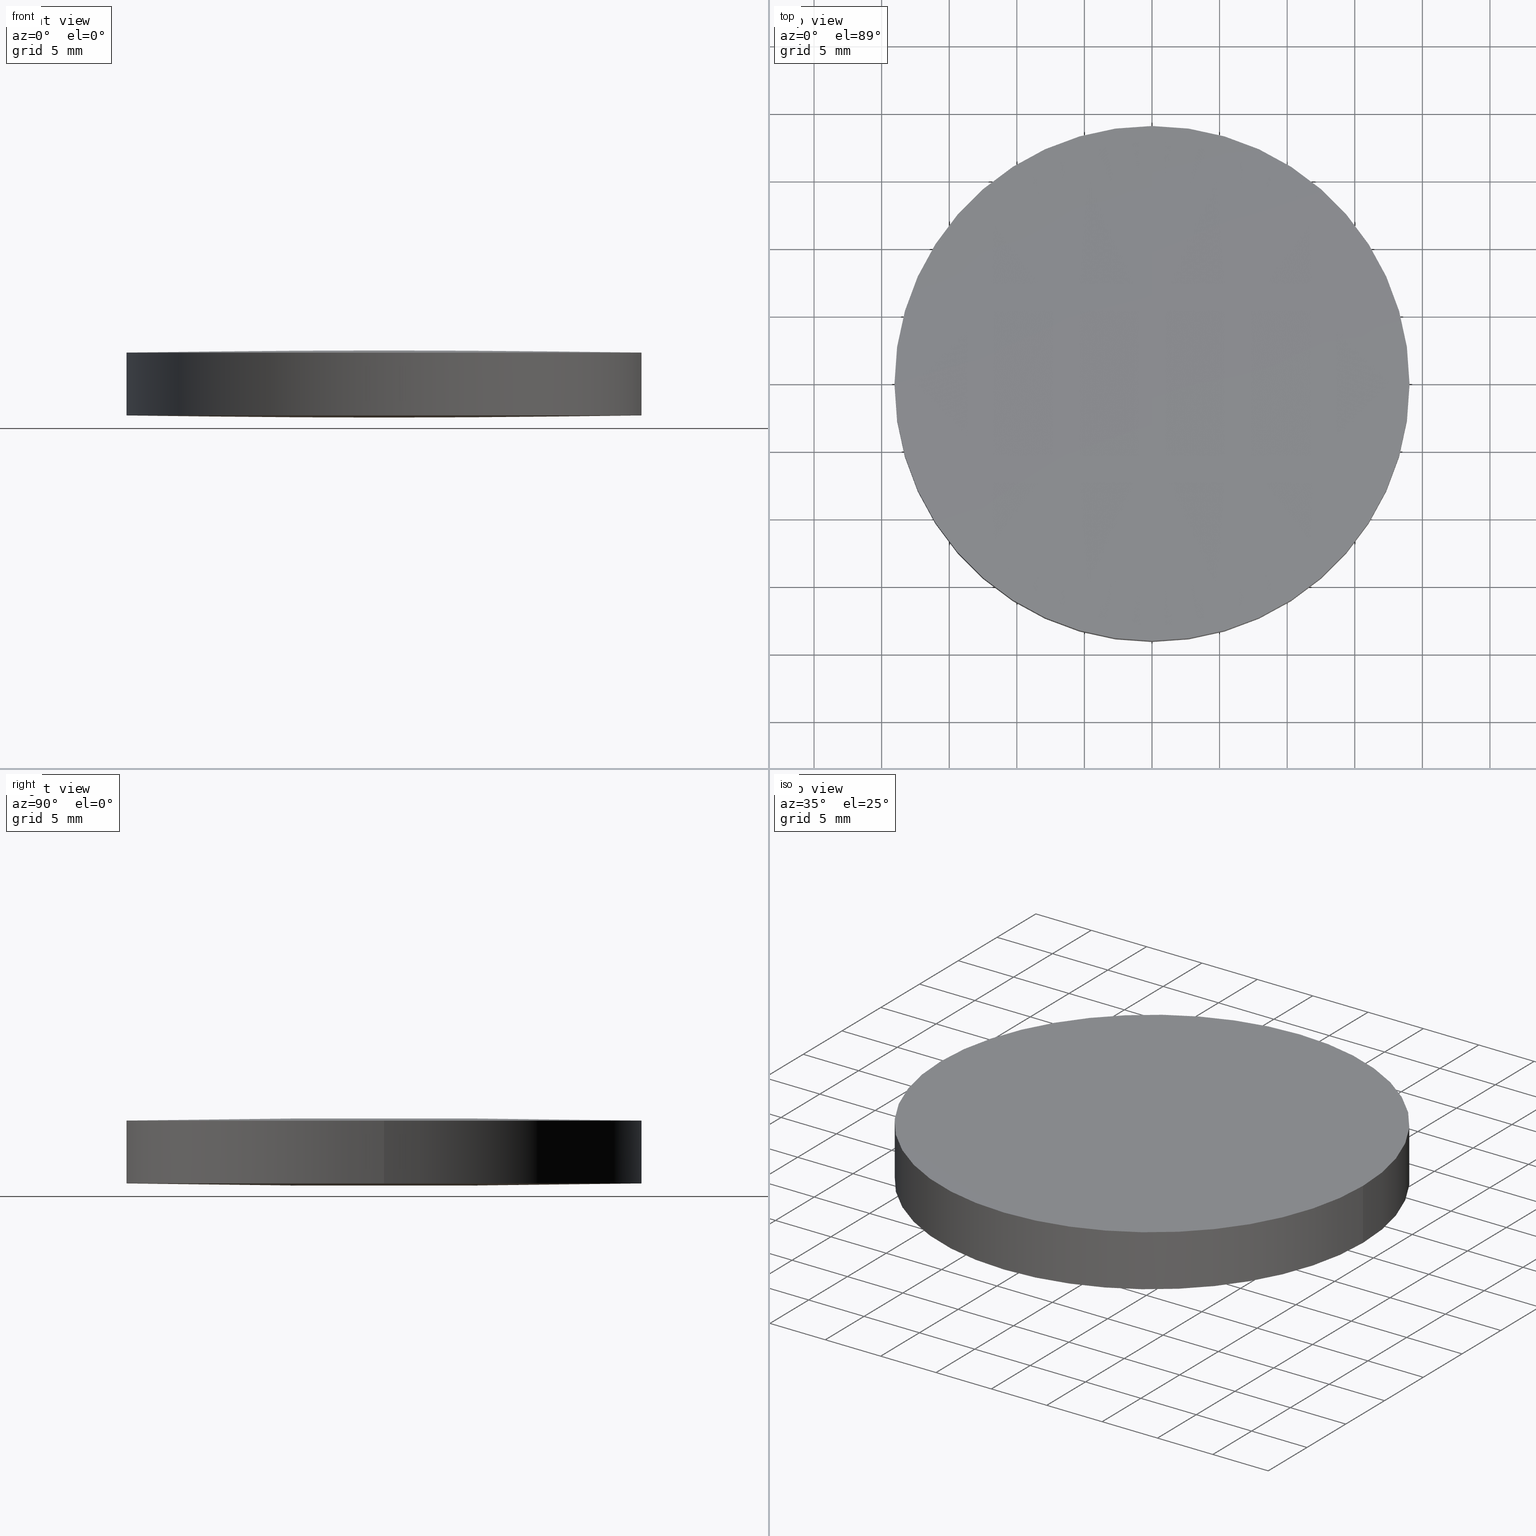
[diagram: canonical four-view strip — front | top / right | iso, engineering-drawing reading convention]
A machine part, canonical four-view strip (front | top / right | iso — engineering-drawing reading convention). The complete STEP part file that produces these views, byte-faithful:
ISO-10303-21;
HEADER;
FILE_DESCRIPTION (( 'STEP AP203' ),
    '1' );
FILE_NAME ('111-0450E BK7 bi-cx 38.1 F1000.STEP',
    '2019-01-10T14:14:38',
    ( '' ),
    ( '' ),
    'SwSTEP 2.0',
    'SolidWorks 2017',
    '' );
FILE_SCHEMA (( 'CONFIG_CONTROL_DESIGN' ));
ENDSEC;

DATA;
#1 = VERTEX_POINT ( 'NONE', #48 ) ;
#2 = DIRECTION ( 'NONE',  ( 1.456985596620939900E-018, 6.792982492034799900E-035, 1.000000000000000000 ) ) ;
#3 = DIRECTION ( 'NONE',  ( -1.456985596620939900E-018, -6.792982492034799900E-035, -1.000000000000000000 ) ) ;
#4 = DIRECTION ( 'NONE',  ( 1.000000000000000000, 0.0000000000000000000, 0.0000000000000000000 ) ) ;
#5 = DIRECTION ( 'NONE',  ( -1.456985596620939900E-018, -6.792982492034799900E-035, -1.000000000000000000 ) ) ;
#6 = CARTESIAN_POINT ( 'NONE',  ( 19.16539115749171500, -6.426931750395551600, 4.882637590654588200 ) ) ;
#7 = UNCERTAINTY_MEASURE_WITH_UNIT (LENGTH_MEASURE( 1.000000000000000100E-005 ), #25, 'distance_accuracy_value', 'NONE');
#8 = VERTEX_POINT ( 'NONE', #273 ) ;
#9 = CARTESIAN_POINT ( 'NONE',  ( 6.388918343689373300, -6.426931750395552500, 5.059745798270014900 ) ) ;
#10 = APPROVAL_DATE_TIME ( #67, #257 ) ;
#11 = AXIS2_PLACEMENT_3D ( 'NONE', #174, #5, #237 ) ;
#12 = ADVANCED_FACE ( 'NONE', ( #89 ), #240, .T. ) ;
#13 = CIRCLE ( 'NONE', #24, 19.05000000000000100 ) ;
#14 = DATE_AND_TIME ( #177, #116 ) ;
#15 = CARTESIAN_POINT ( 'NONE',  ( 12.77756390800498600, 6.426931750395608500, -0.0007080486260923637900 ) ) ;
#16 = ADVANCED_FACE ( 'NONE', ( #249 ), #286, .T. ) ;
#17 = EDGE_CURVE ( 'NONE', #1, #8, #124, .T. ) ;
#18 = CARTESIAN_POINT ( 'NONE',  ( 19.16097500826495200, 19.27857381669848300, 4.643715858214436700 ) ) ;
#19 = CARTESIAN_POINT ( 'NONE',  ( -19.05000000000000400, 1.444773732675583000E-015, 0.1749918621754240300 ) ) ;
#20 =( BOUNDED_SURFACE ( )  B_SPLINE_SURFACE ( 3, 3, ( 
 ( #32, #215, #217, #263 ),
 ( #6, #90, #9, #178 ),
 ( #219, #181, #96, #71 ),
 ( #18, #247, #162, #120 ) ),
 .UNSPECIFIED., .F., .F., .F. ) 
 B_SPLINE_SURFACE_WITH_KNOTS ( ( 4, 4 ),
 ( 4, 4 ),
 ( 0.0000000000000000000, 1.000000000000000000 ),
 ( 0.0000000000000000000, 1.000000000000000000 ),
 .UNSPECIFIED. ) 
 GEOMETRIC_REPRESENTATION_ITEM ( )  RATIONAL_B_SPLINE_SURFACE ( (
 ( 1.000000000000000000, 0.9999715361965574300, 0.9999715361965574300, 1.000000000000000000),
 ( 0.9998847851211856200, 0.9998563245971967600, 0.9998563245971967600, 0.9998847851211856200),
 ( 0.9998847851211856200, 0.9998563245971967600, 0.9998563245971967600, 0.9998847851211856200),
 ( 1.000000000000000000, 0.9999715361965574300, 0.9999715361965574300, 1.000000000000000000) ) ) 
 REPRESENTATION_ITEM ( '' )  SURFACE ( )  );
#21 = AXIS2_PLACEMENT_3D ( 'NONE', #144, #28, #4 ) ;
#22 = DIRECTION ( 'NONE',  ( 1.000000000000000000, 0.0000000000000000000, 0.0000000000000000000 ) ) ;
#23 = DIRECTION ( 'NONE',  ( 1.000000000000000000, 0.0000000000000000000, -1.422837496700137100E-018 ) ) ;
#24 = AXIS2_PLACEMENT_3D ( 'NONE', #86, #3, #29 ) ;
#25 =( LENGTH_UNIT ( ) NAMED_UNIT ( * ) SI_UNIT ( .MILLI., .METRE. ) );
#26 = CIRCLE ( 'NONE', #42, 19.05000000000000100 ) ;
#27 = CALENDAR_DATE ( 2019, 10, 1 ) ;
#28 = DIRECTION ( 'NONE',  ( 0.0000000000000000000, 0.0000000000000000000, 1.000000000000000000 ) ) ;
#29 = DIRECTION ( 'NONE',  ( 1.000000000000000000, 0.0000000000000000000, 0.0000000000000000000 ) ) ;
#30 = PERSON_AND_ORGANIZATION_ROLE ( 'creator' ) ;
#31 = APPLICATION_CONTEXT ( 'configuration controlled 3d designs of mechanical parts and assemblies' ) ;
#32 = CARTESIAN_POINT ( 'NONE',  ( 19.16097500826495200, -19.27857381669841500, 4.643715858214436700 ) ) ;
#33 = AXIS2_PLACEMENT_3D ( 'NONE', #147, #84, #80 ) ;
#34 = DIRECTION ( 'NONE',  ( -1.456985596620939900E-018, -6.792982492034799900E-035, -1.000000000000000000 ) ) ;
#35 =( GEOMETRIC_REPRESENTATION_CONTEXT ( 3 ) GLOBAL_UNCERTAINTY_ASSIGNED_CONTEXT ( ( #7 ) ) GLOBAL_UNIT_ASSIGNED_CONTEXT ( ( #25, #74, #188 ) ) REPRESENTATION_CONTEXT ( 'NONE', 'WORKASPACE' ) );
#36 = VERTEX_POINT ( 'NONE', #189 ) ;
#37 = CIRCLE ( 'NONE', #134, 1037.000000000000000 ) ;
#38 = EDGE_CURVE ( 'NONE', #202, #110, #13, .T. ) ;
#39 = APPROVAL_PERSON_ORGANIZATION ( #128, #242, #149 ) ;
#40 = APPROVAL_DATE_TIME ( #158, #220 ) ;
#41 = EDGE_LOOP ( 'NONE', ( #205, #262, #145 ) ) ;
#42 = AXIS2_PLACEMENT_3D ( 'NONE', #194, #34, #154 ) ;
#43 = CARTESIAN_POINT ( 'NONE',  ( 3.410605131648479900E-013, -19.27857381669843300, 0.1792167439957914600 ) ) ;
#44 = CARTESIAN_POINT ( 'NONE',  ( 19.16539115749159800, -6.426931750395569400, 0.1173624093452770700 ) ) ;
#45 =( BOUNDED_SURFACE ( )  B_SPLINE_SURFACE ( 3, 3, ( 
 ( #53, #186, #232, #102 ),
 ( #294, #127, #104, #143 ),
 ( #130, #129, #56, #50 ),
 ( #252, #275, #207, #272 ) ),
 .UNSPECIFIED., .F., .F., .F. ) 
 B_SPLINE_SURFACE_WITH_KNOTS ( ( 4, 4 ),
 ( 4, 4 ),
 ( 0.0000000000000000000, 1.000000000000000000 ),
 ( 0.0000000000000000000, 1.000000000000000000 ),
 .UNSPECIFIED. ) 
 GEOMETRIC_REPRESENTATION_ITEM ( )  RATIONAL_B_SPLINE_SURFACE ( (
 ( 1.000000000000000000, 0.9999715361965574300, 0.9999715361965574300, 1.000000000000000000),
 ( 0.9998847851211856200, 0.9998563245971967600, 0.9998563245971967600, 0.9998847851211856200),
 ( 0.9998847851211856200, 0.9998563245971967600, 0.9998563245971967600, 0.9998847851211856200),
 ( 1.000000000000000000, 0.9999715361965574300, 0.9999715361965574300, 1.000000000000000000) ) ) 
 REPRESENTATION_ITEM ( '' )  SURFACE ( )  );
#46 = DIRECTION ( 'NONE',  ( -1.000000000000000000, 0.0000000000000000000, 0.0000000000000000000 ) ) ;
#47 = CARTESIAN_POINT ( 'NONE',  ( -4.656161696687986400E-015, -8.881784197001250400E-016, 4.825008137824579700 ) ) ;
#48 = CARTESIAN_POINT ( 'NONE',  ( -19.05000000000000400, 1.444773732675583000E-015, 0.1749918621754240600 ) ) ;
#49 = ORIENTED_EDGE ( 'NONE', *, *, #266, .T. ) ;
#50 = CARTESIAN_POINT ( 'NONE',  ( 8.673617379884035500E-014, 6.426931750395607600, -0.05974579827012176100 ) ) ;
#51 = DIRECTION ( 'NONE',  ( -1.456985596620939900E-018, -6.792982492034799900E-035, -1.000000000000000000 ) ) ;
#52 = DATE_AND_TIME ( #197, #231 ) ;
#53 = CARTESIAN_POINT ( 'NONE',  ( -19.16097500826495200, -19.27857381669843300, 0.3562841417854567500 ) ) ;
#54 = CARTESIAN_POINT ( 'NONE',  ( -3.410605131648479900E-013, -19.04999999999755300, 4.825008137824537100 ) ) ;
#55 = EDGE_CURVE ( 'NONE', #68, #202, #26, .T. ) ;
#56 = CARTESIAN_POINT ( 'NONE',  ( -6.388918343689373300, 6.426931750395608500, -0.05974579827012020000 ) ) ;
#57 = CARTESIAN_POINT ( 'NONE',  ( -12.77756390800498400, -6.426931750395552500, 5.000708048625989800 ) ) ;
#58 = SECURITY_CLASSIFICATION_LEVEL ( 'unclassified' ) ;
#59 = ORGANIZATION ( 'UNSPECIFIED', 'UNSPECIFIED', '' ) ;
#60 = CARTESIAN_POINT ( 'NONE',  ( -3.410605131648479400E-013, -6.426931750395551600, 5.059745798270032700 ) ) ;
#61 = SECURITY_CLASSIFICATION ( '', '', #58 ) ;
#62 = FACE_OUTER_BOUND ( 'NONE', #41, .T. ) ;
#63 = COORDINATED_UNIVERSAL_TIME_OFFSET ( 2, 0, .AHEAD. ) ;
#64 = ADVANCED_BREP_SHAPE_REPRESENTATION ( '111-0450E BK7 bi-cx 38.1 F1000', ( #288, #21 ), #35 ) ;
#65 = ORIENTED_EDGE ( 'NONE', *, *, #266, .F. ) ;
#66 = FACE_OUTER_BOUND ( 'NONE', #206, .T. ) ;
#67 = DATE_AND_TIME ( #27, #142 ) ;
#68 = VERTEX_POINT ( 'NONE', #54 ) ;
#69 = PRODUCT_DEFINITION ( 'UNKNOWN', '', #88, #223 ) ;
#70 = CARTESIAN_POINT ( 'NONE',  ( 6.387446189191361900, -19.27857381669842600, 0.1792167439957914300 ) ) ;
#71 = CARTESIAN_POINT ( 'NONE',  ( -8.673617379884035500E-014, 6.426931750395621800, 5.059745798270014900 ) ) ;
#72 = APPROVAL_DATE_TIME ( #218, #242 ) ;
#73 = ORIENTED_EDGE ( 'NONE', *, *, #38, .F. ) ;
#74 =( NAMED_UNIT ( * ) PLANE_ANGLE_UNIT ( ) SI_UNIT ( $, .RADIAN. ) );
#75 = DIRECTION ( 'NONE',  ( 1.000000000000000000, 0.0000000000000000000, 0.0000000000000000000 ) ) ;
#76 = DIRECTION ( 'NONE',  ( 1.000000000000000000, 0.0000000000000000000, -1.422837496700137100E-018 ) ) ;
#77 = DIRECTION ( 'NONE',  ( 0.0000000000000000000, -1.000000000000000000, -8.564883507233608400E-016 ) ) ;
#78 = DIRECTION ( 'NONE',  ( -1.456985596620939900E-018, -6.792982492034799900E-035, -1.000000000000000000 ) ) ;
#79 = FACE_OUTER_BOUND ( 'NONE', #248, .T. ) ;
#80 = DIRECTION ( 'NONE',  ( 1.000000000000000000, -8.881784197001252300E-016, -1.422837496700137100E-018 ) ) ;
#81 = CARTESIAN_POINT ( 'NONE',  ( -12.77461966186314300, 19.27857381669847600, 4.761759110022530300 ) ) ;
#82 = ORIENTED_EDGE ( 'NONE', *, *, #55, .F. ) ;
#83 = DATE_TIME_ROLE ( 'classification_date' ) ;
#84 = DIRECTION ( 'NONE',  ( -1.456985596620939900E-018, -6.792982492034799900E-035, -1.000000000000000000 ) ) ;
#85 = AXIS2_PLACEMENT_3D ( 'NONE', #198, #46, #290 ) ;
#86 = CARTESIAN_POINT ( 'NONE',  ( -4.656161696687986400E-015, -8.881784197001250400E-016, 4.825008137824579700 ) ) ;
#87 = DATE_TIME_ROLE ( 'creation_date' ) ;
#88 = PRODUCT_DEFINITION_FORMATION_WITH_SPECIFIED_SOURCE ( 'ANY', '', #259, .NOT_KNOWN. ) ;
#89 = FACE_OUTER_BOUND ( 'NONE', #156, .T. ) ;
#90 = CARTESIAN_POINT ( 'NONE',  ( 12.77756390800491600, -6.426931750395552500, 5.000708048625968500 ) ) ;
#91 = CC_DESIGN_PERSON_AND_ORGANIZATION_ASSIGNMENT ( #92, #155, ( #69 ) ) ;
#92 = PERSON_AND_ORGANIZATION ( #196, #59 ) ;
#93 = VERTEX_POINT ( 'NONE', #235 ) ;
#94 = ORIENTED_EDGE ( 'NONE', *, *, #271, .T. ) ;
#95 = AXIS2_PLACEMENT_3D ( 'NONE', #208, #167, #293 ) ;
#96 = CARTESIAN_POINT ( 'NONE',  ( 6.388918343689373300, 6.426931750395622700, 5.059745798270014000 ) ) ;
#97 = CARTESIAN_POINT ( 'NONE',  ( 19.16097500826483800, 19.27857381669846900, 0.3562841417854290000 ) ) ;
#98 = ORIENTED_EDGE ( 'NONE', *, *, #285, .T. ) ;
#99 = CARTESIAN_POINT ( 'NONE',  ( 12.77461966186314500, -19.27857381669842600, 0.2382408899773642300 ) ) ;
#100 = DIRECTION ( 'NONE',  ( -1.456985596620939900E-018, -6.792982492034799900E-035, -1.000000000000000000 ) ) ;
#101 = AXIS2_PLACEMENT_3D ( 'NONE', #269, #210, #75 ) ;
#102 = CARTESIAN_POINT ( 'NONE',  ( 8.673617379884035500E-014, -19.27857381669843300, 0.1792167439958062500 ) ) ;
#103 = CC_DESIGN_APPROVAL ( #220, ( #61 ) ) ;
#104 = CARTESIAN_POINT ( 'NONE',  ( -6.388918343689373300, -6.426931750395570300, -0.05974579827012255900 ) ) ;
#105 = CARTESIAN_POINT ( 'NONE',  ( -3.410605131648479400E-013, 6.426931750395621800, 5.059745798270030000 ) ) ;
#106 = LINE ( 'NONE', #170, #135 ) ;
#107 = PERSON_AND_ORGANIZATION_ROLE ( 'classification_officer' ) ;
#108 = LOCAL_TIME ( 16, 14, 38.00000000000000000, #274 ) ;
#109 = APPLICATION_CONTEXT ( 'configuration controlled 3d designs of mechanical parts and assemblies' ) ;
#110 = VERTEX_POINT ( 'NONE', #216 ) ;
#111 = CARTESIAN_POINT ( 'NONE',  ( -6.388918343689621100, -6.426931750395552500, 5.059745798270032700 ) ) ;
#112 = APPLICATION_PROTOCOL_DEFINITION ( 'international standard', 'config_control_design', 1994, #109 ) ;
#113 = PERSON_AND_ORGANIZATION ( #196, #59 ) ;
#114 = ORIENTED_EDGE ( 'NONE', *, *, #292, .F. ) ;
#115 = CC_DESIGN_PERSON_AND_ORGANIZATION_ASSIGNMENT ( #225, #276, ( #259 ) ) ;
#116 = LOCAL_TIME ( 16, 14, 38.00000000000000000, #236 ) ;
#117 = ORIENTED_EDGE ( 'NONE', *, *, #292, .T. ) ;
#118 = CIRCLE ( 'NONE', #85, 1037.000000000000000 ) ;
#119 = CC_DESIGN_APPROVAL ( #257, ( #88 ) ) ;
#120 = CARTESIAN_POINT ( 'NONE',  ( -8.673617379884035500E-014, 19.27857381669848300, 4.820783256004086900 ) ) ;
#121 = CARTESIAN_POINT ( 'NONE',  ( 3.410605131648479400E-013, -6.426931750395569400, -0.05974579827013896900 ) ) ;
#122 = SHAPE_DEFINITION_REPRESENTATION ( #250, #64 ) ;
#123 = ADVANCED_FACE ( 'NONE', ( #66 ), #161, .T. ) ;
#124 = CIRCLE ( 'NONE', #260, 19.05000000000000100 ) ;
#125 = CC_DESIGN_APPROVAL ( #242, ( #69 ) ) ;
#126 = ORIENTED_EDGE ( 'NONE', *, *, #160, .F. ) ;
#127 = CARTESIAN_POINT ( 'NONE',  ( -12.77756390800491600, -6.426931750395570300, -0.0007080486260752468400 ) ) ;
#128 = PERSON_AND_ORGANIZATION ( #196, #59 ) ;
#129 = CARTESIAN_POINT ( 'NONE',  ( -12.77756390800491600, 6.426931750395608500, -0.0007080486260728887000 ) ) ;
#130 = CARTESIAN_POINT ( 'NONE',  ( -19.16539115749171500, 6.426931750395607600, 0.1173624093453072000 ) ) ;
#131 = APPROVAL_ROLE ( '' ) ;
#132 = PERSON_AND_ORGANIZATION ( #196, #59 ) ;
#133 = CC_DESIGN_DATE_AND_TIME_ASSIGNMENT ( #52, #87, ( #69 ) ) ;
#134 = AXIS2_PLACEMENT_3D ( 'NONE', #251, #295, #77 ) ;
#135 = VECTOR ( 'NONE', #234, 1000.000000000000000 ) ;
#136 = APPROVAL_STATUS ( 'not_yet_approved' ) ;
#137 = CC_DESIGN_PERSON_AND_ORGANIZATION_ASSIGNMENT ( #113, #30, ( #88 ) ) ;
#138 = ORIENTED_EDGE ( 'NONE', *, *, #281, .T. ) ;
#139 = COORDINATED_UNIVERSAL_TIME_OFFSET ( 2, 0, .AHEAD. ) ;
#140 = CC_DESIGN_DATE_AND_TIME_ASSIGNMENT ( #14, #83, ( #61 ) ) ;
#141 = CARTESIAN_POINT ( 'NONE',  ( 6.388918343689618400, -6.426931750395570300, -0.05974579827013898300 ) ) ;
#142 = LOCAL_TIME ( 16, 14, 38.00000000000000000, #139 ) ;
#143 = CARTESIAN_POINT ( 'NONE',  ( 8.673617379884035500E-014, -6.426931750395569400, -0.05974579827012412000 ) ) ;
#144 = CARTESIAN_POINT ( 'NONE',  ( 0.0000000000000000000, 0.0000000000000000000, 0.0000000000000000000 ) ) ;
#145 = ORIENTED_EDGE ( 'NONE', *, *, #284, .F. ) ;
#146 = CIRCLE ( 'NONE', #11, 19.05000000000000100 ) ;
#147 = CARTESIAN_POINT ( 'NONE',  ( -4.662936703425659800E-015, -8.881784197001250400E-016, 0.1749918621754240300 ) ) ;
#148 = CALENDAR_DATE ( 2019, 10, 1 ) ;
#149 = APPROVAL_ROLE ( '' ) ;
#150 = CARTESIAN_POINT ( 'NONE',  ( -12.77461966186314300, -19.27857381669840800, 4.761759110022530300 ) ) ;
#151 = EDGE_CURVE ( 'NONE', #169, #1, #146, .T. ) ;
#152 = ORIENTED_EDGE ( 'NONE', *, *, #284, .T. ) ;
#153 = APPLICATION_PROTOCOL_DEFINITION ( 'international standard', 'config_control_design', 1994, #31 ) ;
#154 = DIRECTION ( 'NONE',  ( 1.000000000000000000, 0.0000000000000000000, 0.0000000000000000000 ) ) ;
#155 = PERSON_AND_ORGANIZATION_ROLE ( 'creator' ) ;
#156 = EDGE_LOOP ( 'NONE', ( #268, #171, #243, #117, #98, #157 ) ) ;
#157 = ORIENTED_EDGE ( 'NONE', *, *, #55, .T. ) ;
#158 = DATE_AND_TIME ( #253, #108 ) ;
#159 = CC_DESIGN_SECURITY_CLASSIFICATION ( #61, ( #88 ) ) ;
#160 = EDGE_CURVE ( 'NONE', #8, #93, #283, .T. ) ;
#161 =( BOUNDED_SURFACE ( )  B_SPLINE_SURFACE ( 3, 3, ( 
 ( #277, #211, #150, #172 ),
 ( #60, #111, #57, #258 ),
 ( #105, #190, #192, #280 ),
 ( #212, #255, #81, #254 ) ),
 .UNSPECIFIED., .F., .F., .F. ) 
 B_SPLINE_SURFACE_WITH_KNOTS ( ( 4, 4 ),
 ( 4, 4 ),
 ( 0.0000000000000000000, 1.000000000000000000 ),
 ( 0.0000000000000000000, 1.000000000000000000 ),
 .UNSPECIFIED. ) 
 GEOMETRIC_REPRESENTATION_ITEM ( )  RATIONAL_B_SPLINE_SURFACE ( (
 ( 1.000000000000000000, 0.9999715361965574300, 0.9999715361965574300, 1.000000000000000000),
 ( 0.9998847851211856200, 0.9998563245971967600, 0.9998563245971967600, 0.9998847851211856200),
 ( 0.9998847851211856200, 0.9998563245971967600, 0.9998563245971967600, 0.9998847851211856200),
 ( 1.000000000000000000, 0.9999715361965574300, 0.9999715361965574300, 1.000000000000000000) ) ) 
 REPRESENTATION_ITEM ( '' )  SURFACE ( )  );
#162 = CARTESIAN_POINT ( 'NONE',  ( 6.387446189191116700, 19.27857381669847600, 4.820783256004084200 ) ) ;
#163 = ADVANCED_FACE ( 'NONE', ( #62 ), #20, .T. ) ;
#164 = CARTESIAN_POINT ( 'NONE',  ( 3.410605131648479400E-013, 6.426931750395607600, -0.05974579827013658900 ) ) ;
#165 = CIRCLE ( 'NONE', #101, 19.05000000000000100 ) ;
#166 = EDGE_CURVE ( 'NONE', #68, #110, #118, .T. ) ;
#167 = DIRECTION ( 'NONE',  ( 1.456985596620939900E-018, 6.792982492034799900E-035, 1.000000000000000000 ) ) ;
#168 = PERSON_AND_ORGANIZATION ( #196, #59 ) ;
#169 = VERTEX_POINT ( 'NONE', #246 ) ;
#170 = CARTESIAN_POINT ( 'NONE',  ( 19.04999999999999700, -8.881784197001250400E-016, 0.1749918621754239800 ) ) ;
#171 = ORIENTED_EDGE ( 'NONE', *, *, #151, .F. ) ;
#172 = CARTESIAN_POINT ( 'NONE',  ( -19.16097500826483800, -19.27857381669841500, 4.643715858214465100 ) ) ;
#173 = VECTOR ( 'NONE', #2, 1000.000000000000000 ) ;
#174 = CARTESIAN_POINT ( 'NONE',  ( -4.662936703425659800E-015, -8.881784197001250400E-016, 0.1749918621754240300 ) ) ;
#175 = PRODUCT_RELATED_PRODUCT_CATEGORY ( 'detail', '', ( #259 ) ) ;
#176 = PERSON_AND_ORGANIZATION_ROLE ( 'design_supplier' ) ;
#177 = CALENDAR_DATE ( 2019, 10, 1 ) ;
#178 = CARTESIAN_POINT ( 'NONE',  ( -8.673617379884035500E-014, -6.426931750395551600, 5.059745798270016700 ) ) ;
#179 = CIRCLE ( 'NONE', #183, 19.05000000000000100 ) ;
#180 = APPROVAL_PERSON_ORGANIZATION ( #287, #220, #131 ) ;
#181 = CARTESIAN_POINT ( 'NONE',  ( 12.77756390800491600, 6.426931750395622700, 5.000708048625966700 ) ) ;
#182 = FACE_OUTER_BOUND ( 'NONE', #261, .T. ) ;
#183 = AXIS2_PLACEMENT_3D ( 'NONE', #187, #51, #76 ) ;
#184 =( BOUNDED_SURFACE ( )  B_SPLINE_SURFACE ( 3, 3, ( 
 ( #43, #70, #99, #267 ),
 ( #121, #141, #226, #44 ),
 ( #164, #264, #15, #201 ),
 ( #200, #185, #227, #97 ) ),
 .UNSPECIFIED., .F., .F., .F. ) 
 B_SPLINE_SURFACE_WITH_KNOTS ( ( 4, 4 ),
 ( 4, 4 ),
 ( 0.0000000000000000000, 1.000000000000000000 ),
 ( 0.0000000000000000000, 1.000000000000000000 ),
 .UNSPECIFIED. ) 
 GEOMETRIC_REPRESENTATION_ITEM ( )  RATIONAL_B_SPLINE_SURFACE ( (
 ( 1.000000000000000000, 0.9999715361965574300, 0.9999715361965574300, 1.000000000000000000),
 ( 0.9998847851211856200, 0.9998563245971967600, 0.9998563245971967600, 0.9998847851211856200),
 ( 0.9998847851211856200, 0.9998563245971967600, 0.9998563245971967600, 0.9998847851211856200),
 ( 1.000000000000000000, 0.9999715361965574300, 0.9999715361965574300, 1.000000000000000000) ) ) 
 REPRESENTATION_ITEM ( '' )  SURFACE ( )  );
#185 = CARTESIAN_POINT ( 'NONE',  ( 6.387446189191361900, 19.27857381669846100, 0.1792167439957914300 ) ) ;
#186 = CARTESIAN_POINT ( 'NONE',  ( -12.77461966186307600, -19.27857381669842600, 0.2382408899773836900 ) ) ;
#187 = CARTESIAN_POINT ( 'NONE',  ( -4.662936703425659800E-015, -8.881784197001250400E-016, 0.1749918621754240300 ) ) ;
#188 =( NAMED_UNIT ( * ) SI_UNIT ( $, .STERADIAN. ) SOLID_ANGLE_UNIT ( ) );
#189 = CARTESIAN_POINT ( 'NONE',  ( 19.04999999999999700, -8.881784197001250400E-016, 4.825008137824579700 ) ) ;
#190 = CARTESIAN_POINT ( 'NONE',  ( -6.388918343689621100, 6.426931750395622700, 5.059745798270030000 ) ) ;
#191 = APPROVAL_STATUS ( 'not_yet_approved' ) ;
#192 = CARTESIAN_POINT ( 'NONE',  ( -12.77756390800498400, 6.426931750395622700, 5.000708048625987200 ) ) ;
#193 = EDGE_LOOP ( 'NONE', ( #282, #138, #203, #152, #114, #126 ) ) ;
#194 = CARTESIAN_POINT ( 'NONE',  ( -4.656161696687986400E-015, -8.881784197001250400E-016, 4.825008137824579700 ) ) ;
#195 = APPROVAL_STATUS ( 'not_yet_approved' ) ;
#196 = PERSON ( 'UNSPECIFIED', 'UNSPECIFIED', 'UNSPECIFIED', ('UNSPECIFIED'), ('UNSPECIFIED'), ('UNSPECIFIED') ) ;
#197 = CALENDAR_DATE ( 2019, 10, 1 ) ;
#198 = CARTESIAN_POINT ( 'NONE',  ( -3.410605131648479900E-013, 1.136868377216160000E-013, -1032.000000000000000 ) ) ;
#199 = CC_DESIGN_PERSON_AND_ORGANIZATION_ASSIGNMENT ( #168, #107, ( #61 ) ) ;
#200 = CARTESIAN_POINT ( 'NONE',  ( 3.410605131648479900E-013, 19.27857381669846900, 0.1792167439957914600 ) ) ;
#201 = CARTESIAN_POINT ( 'NONE',  ( 19.16539115749159800, 6.426931750395607600, 0.1173624093452794400 ) ) ;
#202 = VERTEX_POINT ( 'NONE', #213 ) ;
#203 = ORIENTED_EDGE ( 'NONE', *, *, #38, .T. ) ;
#204 = CC_DESIGN_PERSON_AND_ORGANIZATION_ASSIGNMENT ( #279, #176, ( #88 ) ) ;
#205 = ORIENTED_EDGE ( 'NONE', *, *, #166, .F. ) ;
#206 = EDGE_LOOP ( 'NONE', ( #82, #230, #73 ) ) ;
#207 = CARTESIAN_POINT ( 'NONE',  ( -6.387446189191116700, 19.27857381669846100, 0.1792167439958078100 ) ) ;
#208 = CARTESIAN_POINT ( 'NONE',  ( -4.662936703425659800E-015, -8.881784197001250400E-016, 0.1749918621754240100 ) ) ;
#209 = CARTESIAN_POINT ( 'NONE',  ( -4.662936703425659800E-015, -8.881784197001250400E-016, 0.1749918621754240300 ) ) ;
#210 = DIRECTION ( 'NONE',  ( -1.456985596620939900E-018, -6.792982492034799900E-035, -1.000000000000000000 ) ) ;
#211 = CARTESIAN_POINT ( 'NONE',  ( -6.387446189191363600, -19.27857381669840800, 4.820783256004100200 ) ) ;
#212 = CARTESIAN_POINT ( 'NONE',  ( -3.410605131648479900E-013, 19.27857381669848300, 4.820783256004102000 ) ) ;
#213 = CARTESIAN_POINT ( 'NONE',  ( -19.05000000000000400, 1.444773732675583000E-015, 4.825008137824579700 ) ) ;
#214 = AXIS2_PLACEMENT_3D ( 'NONE', #47, #100, #22 ) ;
#215 = CARTESIAN_POINT ( 'NONE',  ( 12.77461966186307600, -19.27857381669840800, 4.761759110022509800 ) ) ;
#216 = CARTESIAN_POINT ( 'NONE',  ( -3.410605131648479900E-013, 19.04999999999766700, 4.825008137824537100 ) ) ;
#217 = CARTESIAN_POINT ( 'NONE',  ( 6.387446189191116700, -19.27857381669840800, 4.820783256004084200 ) ) ;
#218 = DATE_AND_TIME ( #148, #222 ) ;
#219 = CARTESIAN_POINT ( 'NONE',  ( 19.16539115749171500, 6.426931750395621800, 4.882637590654586500 ) ) ;
#220 = APPROVAL ( #195, 'UNSPECIFIED' ) ;
#221 = AXIS2_PLACEMENT_3D ( 'NONE', #229, #291, #23 ) ;
#222 = LOCAL_TIME ( 16, 14, 38.00000000000000000, #241 ) ;
#223 = DESIGN_CONTEXT ( 'detailed design', #31, 'design' ) ;
#224 = ORIENTED_EDGE ( 'NONE', *, *, #151, .T. ) ;
#225 = PERSON_AND_ORGANIZATION ( #196, #59 ) ;
#226 = CARTESIAN_POINT ( 'NONE',  ( 12.77756390800498600, -6.426931750395570300, -0.0007080486260947355900 ) ) ;
#227 = CARTESIAN_POINT ( 'NONE',  ( 12.77461966186314500, 19.27857381669846100, 0.2382408899773642300 ) ) ;
#228 = ADVANCED_FACE ( 'NONE', ( #79 ), #184, .T. ) ;
#229 = CARTESIAN_POINT ( 'NONE',  ( -4.662936703425659800E-015, -8.881784197001250400E-016, 0.1749918621754240100 ) ) ;
#230 = ORIENTED_EDGE ( 'NONE', *, *, #166, .T. ) ;
#231 = LOCAL_TIME ( 16, 14, 38.00000000000000000, #63 ) ;
#232 = CARTESIAN_POINT ( 'NONE',  ( -6.387446189191116700, -19.27857381669842600, 0.1792167439958078100 ) ) ;
#233 = DIRECTION ( 'NONE',  ( 1.000000000000000000, 0.0000000000000000000, -1.422837496700137100E-018 ) ) ;
#234 = DIRECTION ( 'NONE',  ( 1.456985596620939900E-018, 6.792982492034799900E-035, 1.000000000000000000 ) ) ;
#235 = CARTESIAN_POINT ( 'NONE',  ( 19.04999999999999700, -8.881784197001250400E-016, 0.1749918621754240100 ) ) ;
#236 = COORDINATED_UNIVERSAL_TIME_OFFSET ( 2, 0, .AHEAD. ) ;
#237 = DIRECTION ( 'NONE',  ( 1.000000000000000000, 0.0000000000000000000, -1.422837496700137100E-018 ) ) ;
#238 = APPROVAL_ROLE ( '' ) ;
#239 = MECHANICAL_CONTEXT ( 'NONE', #109, 'mechanical' ) ;
#240 = CYLINDRICAL_SURFACE ( 'NONE', #95, 19.05000000000000100 ) ;
#241 = COORDINATED_UNIVERSAL_TIME_OFFSET ( 2, 0, .AHEAD. ) ;
#242 = APPROVAL ( #136, 'UNSPECIFIED' ) ;
#243 = ORIENTED_EDGE ( 'NONE', *, *, #271, .F. ) ;
#244 = ORIENTED_EDGE ( 'NONE', *, *, #160, .T. ) ;
#245 = LINE ( 'NONE', #19, #173 ) ;
#246 = CARTESIAN_POINT ( 'NONE',  ( 3.410605131648479900E-013, -19.04999999999754900, 0.1749918621754119600 ) ) ;
#247 = CARTESIAN_POINT ( 'NONE',  ( 12.77461966186307600, 19.27857381669847600, 4.761759110022509800 ) ) ;
#248 = EDGE_LOOP ( 'NONE', ( #94, #49, #244 ) ) ;
#249 = FACE_OUTER_BOUND ( 'NONE', #193, .T. ) ;
#250 = PRODUCT_DEFINITION_SHAPE ( 'NONE', 'NONE',  #69 ) ;
#251 = CARTESIAN_POINT ( 'NONE',  ( 3.410605131648479900E-013, 1.136868377216160000E-013, 1037.000000000000000 ) ) ;
#252 = CARTESIAN_POINT ( 'NONE',  ( -19.16097500826495200, 19.27857381669846900, 0.3562841417854567500 ) ) ;
#253 = CALENDAR_DATE ( 2019, 10, 1 ) ;
#254 = CARTESIAN_POINT ( 'NONE',  ( -19.16097500826483800, 19.27857381669848300, 4.643715858214465100 ) ) ;
#255 = CARTESIAN_POINT ( 'NONE',  ( -6.387446189191363600, 19.27857381669847600, 4.820783256004100200 ) ) ;
#256 = ORIENTED_EDGE ( 'NONE', *, *, #17, .T. ) ;
#257 = APPROVAL ( #191, 'UNSPECIFIED' ) ;
#258 = CARTESIAN_POINT ( 'NONE',  ( -19.16539115749159800, -6.426931750395551600, 4.882637590654617600 ) ) ;
#259 = PRODUCT ( '111-0450E BK7 bi-cx 38.1 F1000', '111-0450E BK7 bi-cx 38.1 F1000', '', ( #239 ) ) ;
#260 = AXIS2_PLACEMENT_3D ( 'NONE', #209, #78, #233 ) ;
#261 = EDGE_LOOP ( 'NONE', ( #65, #224, #256 ) ) ;
#262 = ORIENTED_EDGE ( 'NONE', *, *, #285, .F. ) ;
#263 = CARTESIAN_POINT ( 'NONE',  ( -8.673617379884035500E-014, -19.27857381669841500, 4.820783256004086900 ) ) ;
#264 = CARTESIAN_POINT ( 'NONE',  ( 6.388918343689618400, 6.426931750395608500, -0.05974579827013659600 ) ) ;
#265 = APPROVAL_PERSON_ORGANIZATION ( #132, #257, #238 ) ;
#266 = EDGE_CURVE ( 'NONE', #169, #8, #37, .T. ) ;
#267 = CARTESIAN_POINT ( 'NONE',  ( 19.16097500826483800, -19.27857381669843300, 0.3562841417854290000 ) ) ;
#268 = ORIENTED_EDGE ( 'NONE', *, *, #281, .F. ) ;
#269 = CARTESIAN_POINT ( 'NONE',  ( -4.656161696687986400E-015, -8.881784197001250400E-016, 4.825008137824579700 ) ) ;
#270 = ADVANCED_FACE ( 'NONE', ( #182 ), #45, .T. ) ;
#271 = EDGE_CURVE ( 'NONE', #93, #169, #179, .T. ) ;
#272 = CARTESIAN_POINT ( 'NONE',  ( 8.673617379884035500E-014, 19.27857381669846900, 0.1792167439958062500 ) ) ;
#273 = CARTESIAN_POINT ( 'NONE',  ( 3.410605131648479900E-013, 19.04999999999766700, 0.1749918621754119600 ) ) ;
#274 = COORDINATED_UNIVERSAL_TIME_OFFSET ( 2, 0, .AHEAD. ) ;
#275 = CARTESIAN_POINT ( 'NONE',  ( -12.77461966186307600, 19.27857381669846100, 0.2382408899773836900 ) ) ;
#276 = PERSON_AND_ORGANIZATION_ROLE ( 'design_owner' ) ;
#277 = CARTESIAN_POINT ( 'NONE',  ( -3.410605131648479900E-013, -19.27857381669841500, 4.820783256004102000 ) ) ;
#278 = CIRCLE ( 'NONE', #214, 19.05000000000000100 ) ;
#279 = PERSON_AND_ORGANIZATION ( #196, #59 ) ;
#280 = CARTESIAN_POINT ( 'NONE',  ( -19.16539115749159800, 6.426931750395621800, 4.882637590654614900 ) ) ;
#281 = EDGE_CURVE ( 'NONE', #1, #202, #245, .T. ) ;
#282 = ORIENTED_EDGE ( 'NONE', *, *, #17, .F. ) ;
#283 = CIRCLE ( 'NONE', #33, 19.05000000000000100 ) ;
#284 = EDGE_CURVE ( 'NONE', #110, #36, #278, .T. ) ;
#285 = EDGE_CURVE ( 'NONE', #36, #68, #165, .T. ) ;
#286 = CYLINDRICAL_SURFACE ( 'NONE', #221, 19.05000000000000100 ) ;
#287 = PERSON_AND_ORGANIZATION ( #196, #59 ) ;
#288 = MANIFOLD_SOLID_BREP ( 'Imported1', #289 ) ;
#289 = CLOSED_SHELL ( 'NONE', ( #228, #123, #16, #270, #12, #163 ) ) ;
#290 = DIRECTION ( 'NONE',  ( 0.0000000000000000000, -1.000000000000000000, 4.282441753616804200E-016 ) ) ;
#291 = DIRECTION ( 'NONE',  ( 1.456985596620939900E-018, 6.792982492034799900E-035, 1.000000000000000000 ) ) ;
#292 = EDGE_CURVE ( 'NONE', #93, #36, #106, .T. ) ;
#293 = DIRECTION ( 'NONE',  ( 1.000000000000000000, 0.0000000000000000000, -1.422837496700137100E-018 ) ) ;
#294 = CARTESIAN_POINT ( 'NONE',  ( -19.16539115749171500, -6.426931750395569400, 0.1173624093453048400 ) ) ;
#295 = DIRECTION ( 'NONE',  ( 1.000000000000000000, 0.0000000000000000000, 0.0000000000000000000 ) ) ;
ENDSEC;
END-ISO-10303-21;
